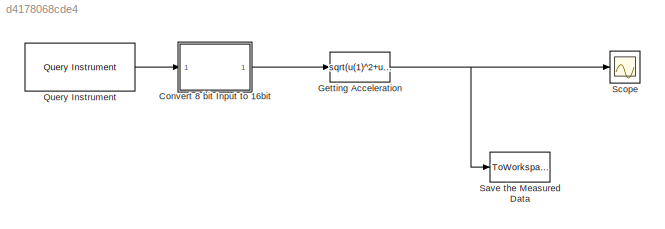
MODEL slx_d4178068cde4
KIND model
CONFIG AbsTol = auto
CONFIG EnableMultiTasking = off
CONFIG FixedStep = auto
CONFIG MaxStep = auto
CONFIG MinStep = auto
CONFIG RelTol = 1e-3
CONFIG SampleTimeConstraint = Unconstrained
CONFIG Solver = VariableStepAuto
CONFIG SolverName = VariableStepAuto
CONFIG StartTime = 0.0
CONFIG StopTime = 15
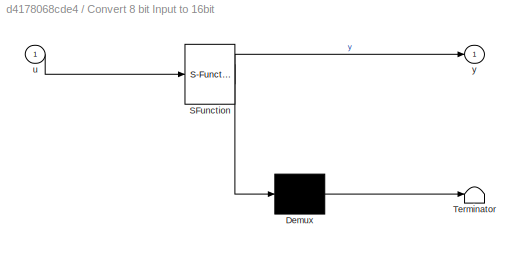
BLOCK [SubSystem] Convert 8 bit Input to 16bit
  ErrorFcn = Stateflow.Translate.translate
  PermitHierarchicalResolution = ExplicitOnly
  Ports = [1, 1]
  RequestExecContextInheritance = off
  SFBlockType = MATLAB Function
  TreatAsAtomicUnit = on
  Variant = off
BLOCK [Demux] Convert 8 bit Input to 16bit/ Demux 
  Outputs = 1
  Ports = [1, 1]
BLOCK [S-Function] Convert 8 bit Input to 16bit/ SFunction 
  EnableBusSupport = on
  FunctionName = sf_sfun
  PortCounts = [1 2]
  Ports = [1, 2]
  SFcnIsStateOwnerBlock = off
  SFunctionDeploymentMode = off
  Tag = Stateflow S-Function readacc_16bit 2
BLOCK [Terminator] Convert 8 bit Input to 16bit/ Terminator 
BLOCK [Inport] Convert 8 bit Input to 16bit/u
  IconDisplay = Port number
BLOCK [Outport] Convert 8 bit Input to 16bit/y
  IconDisplay = Port number
BLOCK [Fcn] Getting Acceleration
  Expr = sqrt(u(1)^2+u(2)^2+u(3)^2)
BLOCK [Reference] Query Instrument  REF=instrumentlib/Query Instrument
  Ports = [0, 1]
  SourceBlock = instrumentlib/Query Instrument
  SourceProductBaseCode = IC
  SourceProductName = Instrument Control Toolbox
  SourceType = queryinstrument
BLOCK [ToWorkspace] Save the Measured Data
  FixptAsFi = on
  MaxDataPoints = inf
  Ports = [1]
  SampleTime = -1
  Save2DSignal = 3-D array (concatenate along third dimension)
  SaveFormat = Timeseries
  VariableName = simout
BLOCK [Scope] Scope
  NumInputPorts = 1
  Ports = [1]
  ScopeSpecificationString = Simulink.scopes.TimeScopeBlockCfg('CurrentConfiguration', extmgr.ConfigurationSet(extmgr.Configuration('Core','General UI',true),extmgr.Configuration('Core','Source UI',true),extmgr.Configuration('Sources','WiredSimulink',true),extmgr.Configuration('Visuals','Time Domain',true,'SerializedDisplays',{struct('MinYLimReal','15.04781','MaxYLimReal','106.43748','YLabelReal','','MinYLimMag','15.04781','M...<+1436ch>
LINE Convert 8 bit Input to 16bit:1 -> Getting Acceleration:1
NET Getting Acceleration:1 -> Save the Measured Data:1, Scope:1
LINE Query Instrument:1 -> Convert 8 bit Input to 16bit:1
note: NET lines group one-source signal fan-out (src -> all destinations, sorted); 1:1 wires keep LINE
CHART Convert 8 bit Input to 16bit states=1 transitions=1
  STATE_LABEL 'eML_blk_kernel()'
  STATE_LABEL 'SCRIPT:\nfunction y = fcn(u)\nu2 = zeros(7,1);\nfor i = 1:7\n    if u(i) == -127\n        u2=[u((i+1):7);u(1:i)];\n        break\n    end\nend\ny1 = u2(1)*256+u2(2);\ny2 = u2(3)*256+u2(4);\ny3 = u2(5)*256+u2(6);\ny=[y1,y2,y3];\n\n'
